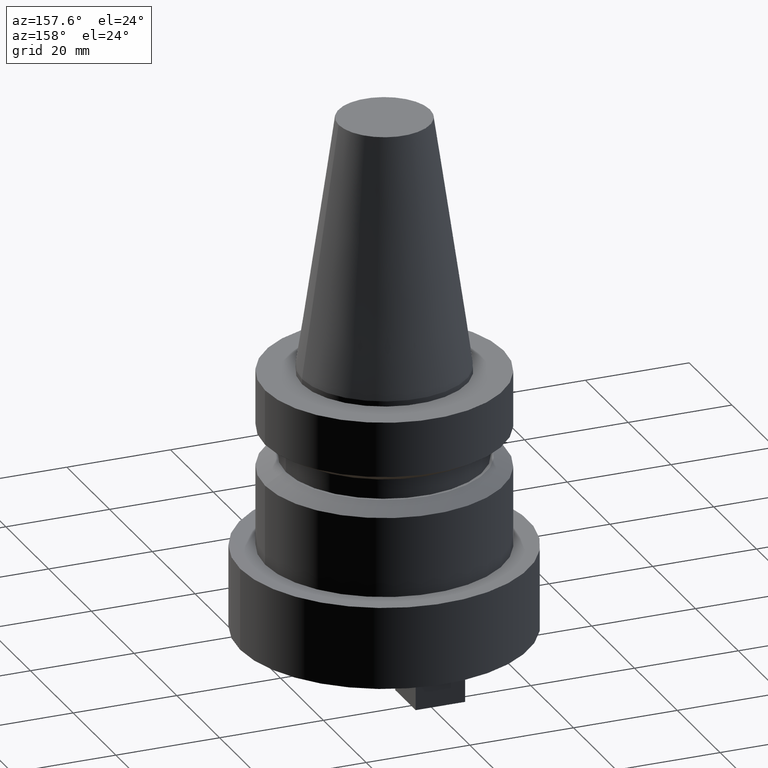
[diagram: clean part render]
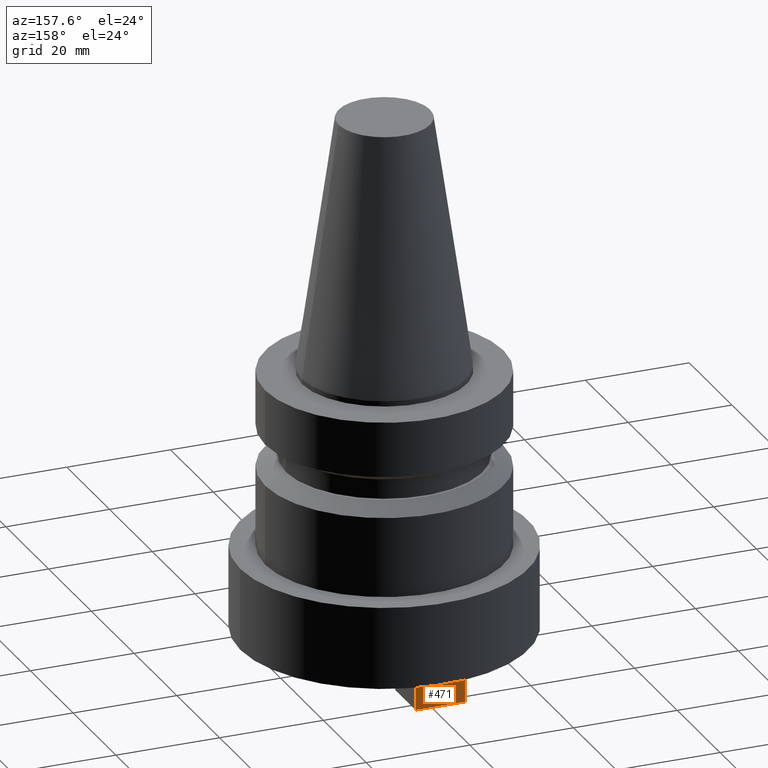
[diagram: same view with one face highlighted and labeled with its STEP entity id]
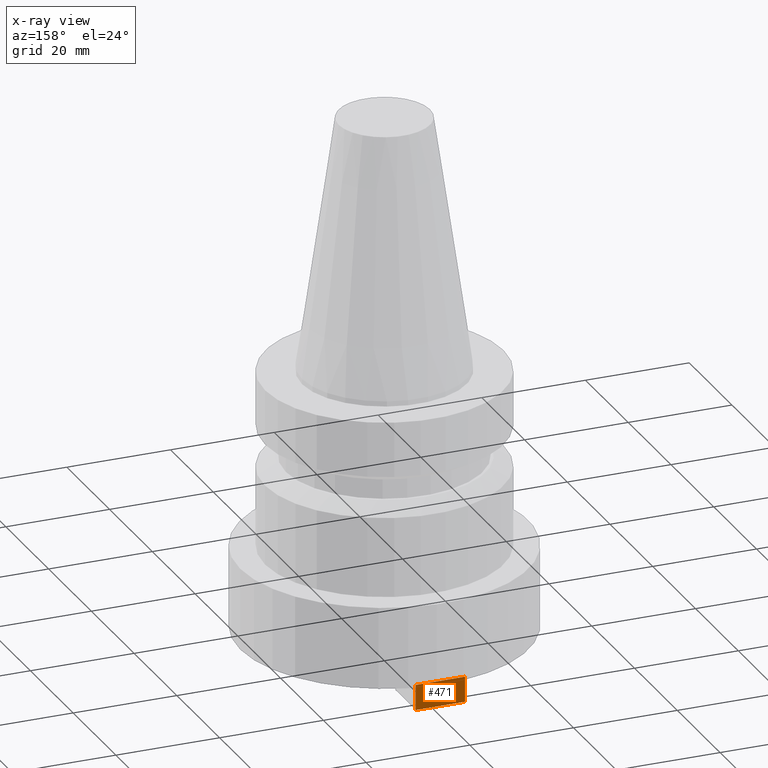
[diagram: x-ray of the same camera — body ghosted, the highlighted face saturated]
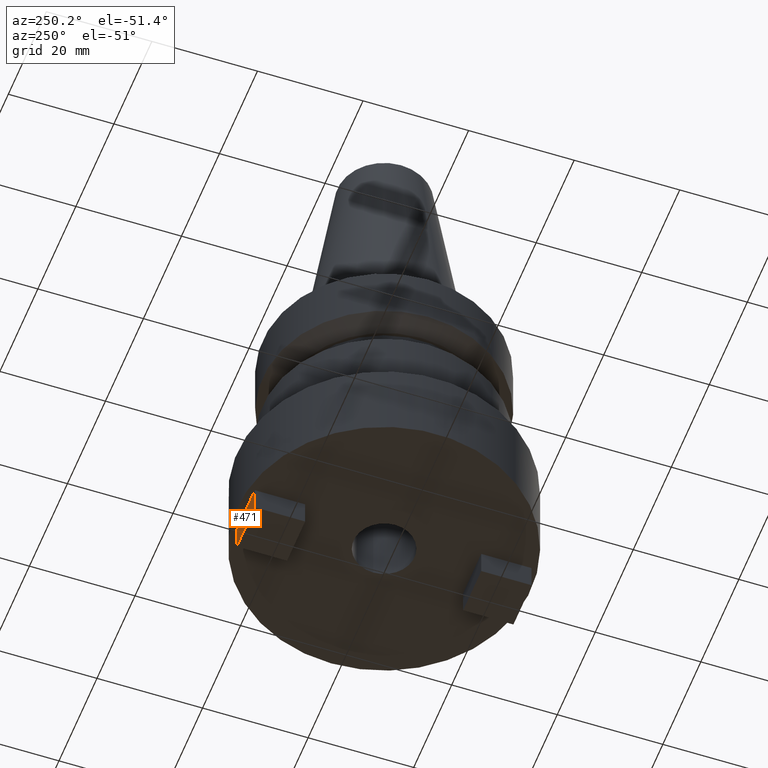
[diagram: same view with one face highlighted and labeled with its STEP entity id]
A machine part, auxiliary view. The second image highlights one B-rep face of the part: STEP entity #471.
The next image is the same camera in x-ray: the body ghosted, the highlighted face saturated — about 0% of this face is hidden behind the body in this view.
A second angle (auxiliary view) of the same face is appended — the face is thin or edge-on in the first view.
In plain terms, the highlighted planar face has unit normal (0, 1, 0).
Its self-contained STEP definition (entity closure, byte-faithful):
#3 = VERTEX_POINT ( 'NONE', #572 ) ;
#30 = ORIENTED_EDGE ( 'NONE', *, *, #300, .F. ) ;
#90 = LINE ( 'NONE', #652, #488 ) ;
#121 = CARTESIAN_POINT ( 'NONE',  ( 4.764999999999997904, 26.21000000000000085, -55.70000000000000284 ) ) ;
#132 = CARTESIAN_POINT ( 'NONE',  ( 9.541889256107473405E-15, 26.21000000000000085, -55.70000000000000284 ) ) ;
#138 = EDGE_CURVE ( 'NONE', #481, #569, #90, .T. ) ;
#142 = AXIS2_PLACEMENT_3D ( 'NONE', #637, #370, #272 ) ;
#143 = CARTESIAN_POINT ( 'NONE',  ( 4.764999999999997904, 26.21000000000000085, -55.70000000000000284 ) ) ;
#199 = LINE ( 'NONE', #143, #489 ) ;
#255 = DIRECTION ( 'NONE',  ( -1.000000000000000000, 3.640552940140203583E-16, 0.000000000000000000 ) ) ;
#267 = CARTESIAN_POINT ( 'NONE',  ( 9.541889256107473405E-15, 26.21000000000000085, -50.79999999999999716 ) ) ;
#272 = DIRECTION ( 'NONE',  ( -1.000000000000000000, 3.640552940140203583E-16, 0.000000000000000000 ) ) ;
#300 = EDGE_CURVE ( 'NONE', #3, #569, #639, .T. ) ;
#306 = ORIENTED_EDGE ( 'NONE', *, *, #138, .T. ) ;
#321 = CARTESIAN_POINT ( 'NONE',  ( -4.765000000000002345, 26.21000000000000441, -50.79999999999999716 ) ) ;
#329 = LINE ( 'NONE', #132, #501 ) ;
#341 = DIRECTION ( 'NONE',  ( -0.000000000000000000, -0.000000000000000000, 1.000000000000000000 ) ) ;
#363 = EDGE_LOOP ( 'NONE', ( #30, #554, #394, #306 ) ) ;
#370 = DIRECTION ( 'NONE',  ( 3.640552940140203583E-16, 1.000000000000000000, 0.000000000000000000 ) ) ;
#394 = ORIENTED_EDGE ( 'NONE', *, *, #506, .T. ) ;
#418 = FACE_OUTER_BOUND ( 'NONE', #363, .T. ) ;
#420 = PLANE ( 'NONE',  #142 ) ;
#439 = DIRECTION ( 'NONE',  ( -1.000000000000000000, 3.640552940140203583E-16, 0.000000000000000000 ) ) ;
#471 = ADVANCED_FACE ( 'NONE', ( #418 ), #420, .T. ) ;
#479 = CARTESIAN_POINT ( 'NONE',  ( -4.765000000000002345, 26.21000000000000441, -55.70000000000000284 ) ) ;
#481 = VERTEX_POINT ( 'NONE', #479 ) ;
#488 = VECTOR ( 'NONE', #341, 1000.000000000000000 ) ;
#489 = VECTOR ( 'NONE', #517, 1000.000000000000000 ) ;
#501 = VECTOR ( 'NONE', #439, 1000.000000000000000 ) ;
#506 = EDGE_CURVE ( 'NONE', #611, #481, #329, .T. ) ;
#517 = DIRECTION ( 'NONE',  ( -0.000000000000000000, -0.000000000000000000, 1.000000000000000000 ) ) ;
#554 = ORIENTED_EDGE ( 'NONE', *, *, #670, .F. ) ;
#569 = VERTEX_POINT ( 'NONE', #321 ) ;
#572 = CARTESIAN_POINT ( 'NONE',  ( 4.764999999999997904, 26.21000000000000085, -50.79999999999999716 ) ) ;
#611 = VERTEX_POINT ( 'NONE', #121 ) ;
#627 = VECTOR ( 'NONE', #255, 1000.000000000000000 ) ;
#637 = CARTESIAN_POINT ( 'NONE',  ( 9.541889256107473405E-15, 26.21000000000000085, -55.70000000000000284 ) ) ;
#639 = LINE ( 'NONE', #267, #627 ) ;
#652 = CARTESIAN_POINT ( 'NONE',  ( -4.765000000000002345, 26.21000000000000441, -55.70000000000000284 ) ) ;
#670 = EDGE_CURVE ( 'NONE', #611, #3, #199, .T. ) ;